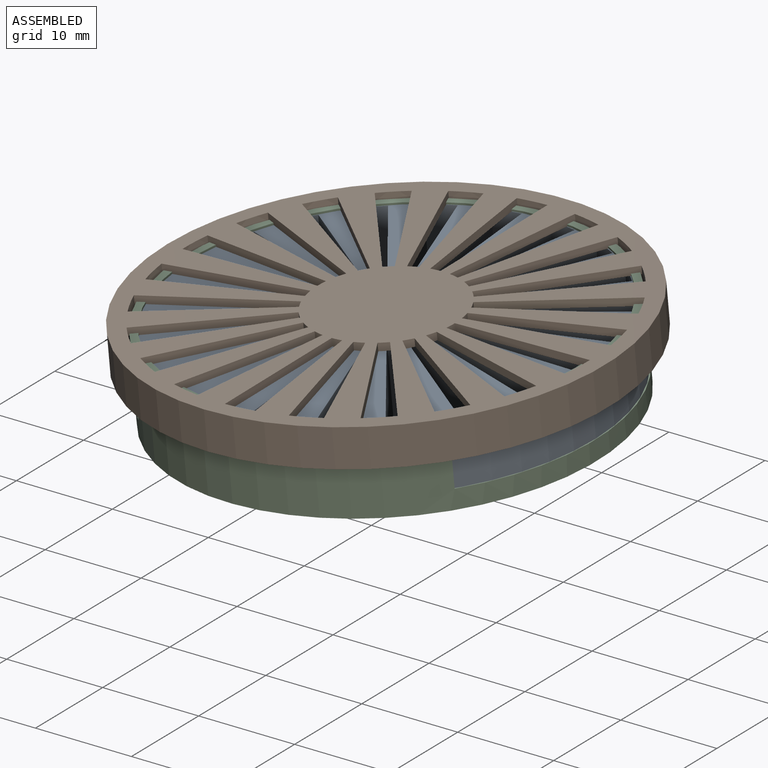
[diagram: assembled view]
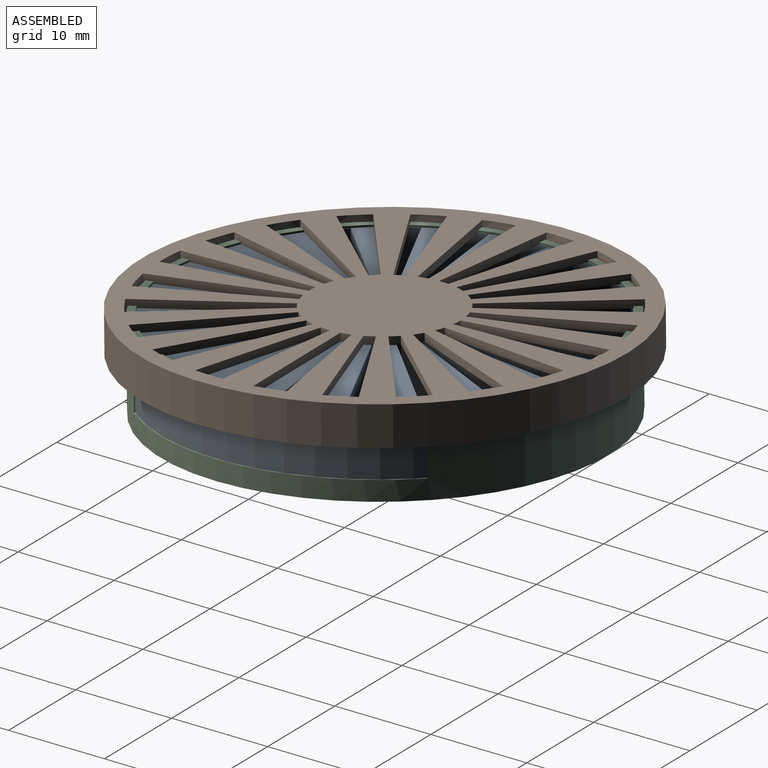
[diagram: assembled view, second angle]
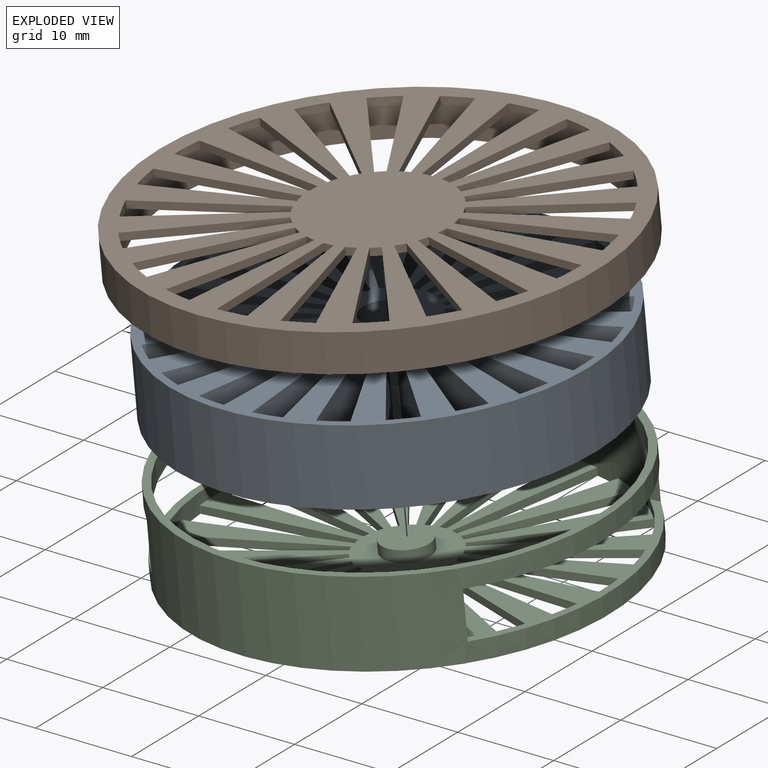
[diagram: exploded view]
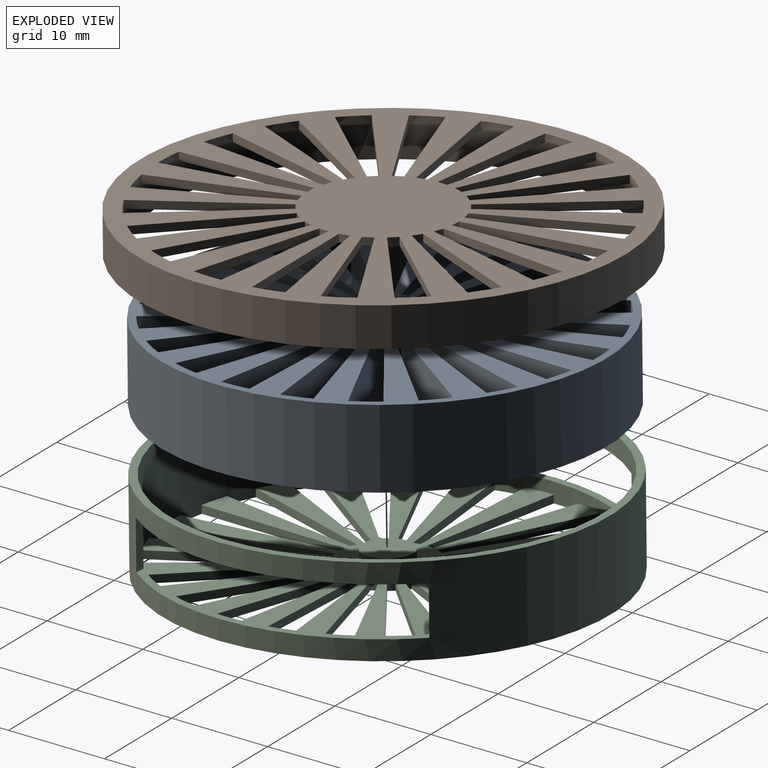
[diagram: exploded view, second angle]
ASSEMBLY  parts=3 mates=4
PART A: 92 faces, bbox 44x44x8 mm
  f0: cylinder r=21.2mm len=8mm, axis (0,0,-1), area 24.2mm2, adj f1,f88,f89,f90
  f1: plane 15.54x8mm, normal (0.28,0.96,0), area 129.6mm2, adj f0,f2,f89,f90
  f2: cylinder r=5mm len=8mm, axis (0,0,-1), area 5.7mm2, adj f1,f88,f89,f90
  f3: cylinder r=21.2mm len=8mm, axis (0,0,-1), area 24.2mm2, adj f4,f66,f89,f90
  f4: plane 13.63x8.76mm, normal (0.54,0.84,0), area 129.6mm2, adj f3,f5,f89,f90
  f5: cylinder r=5mm len=8mm, axis (0,0,-1), area 5.7mm2, adj f4,f66,f89,f90
  f6: cylinder r=21.2mm len=8mm, axis (0,0,-1), area 24.2mm2, adj f7,f67,f89,f90
  f7: plane 12.24x10.61mm, normal (0.76,0.65,0), area 129.6mm2, adj f6,f8,f89,f90
  f8: cylinder r=5mm len=8mm, axis (0,0,-1), area 5.7mm2, adj f7,f67,f89,f90
  f9: cylinder r=21.2mm len=8mm, axis (0,0,-1), area 24.2mm2, adj f10,f68,f89,f90
  f10: plane 14.74x8mm, normal (0.91,0.42,0), area 129.6mm2, adj f9,f11,f89,f90
  f11: cylinder r=5mm len=8mm, axis (0,0,-1), area 5.7mm2, adj f10,f68,f89,f90
  f12: cylinder r=21.2mm len=8mm, axis (0,0,-1), area 24.2mm2, adj f13,f69,f89,f90
  f13: plane 16.04x8mm, normal (0.99,0.14,0), area 129.6mm2, adj f12,f14,f89,f90
  f14: cylinder r=5mm len=8mm, axis (0,0,-1), area 5.7mm2, adj f13,f69,f89,f90
  f15: cylinder r=21.2mm len=8mm, axis (0,0,-1), area 24.2mm2, adj f16,f70,f89,f90
  f16: plane 16.04x8mm, normal (0.99,-0.14,0), area 129.6mm2, adj f15,f17,f89,f90
  f17: cylinder r=5mm len=8mm, axis (0,0,-1), area 5.7mm2, adj f16,f70,f89,f90
  f18: cylinder r=21.2mm len=8mm, axis (0,0,-1), area 24.2mm2, adj f19,f71,f89,f90
  f19: plane 14.74x8mm, normal (0.91,-0.42,0), area 129.6mm2, adj f18,f20,f89,f90
  f20: cylinder r=5mm len=8mm, axis (0,0,-1), area 5.7mm2, adj f19,f71,f89,f90
  f21: cylinder r=21.2mm len=8mm, axis (0,0,-1), area 24.2mm2, adj f22,f72,f89,f90
  f22: plane 12.24x10.61mm, normal (0.76,-0.65,0), area 129.6mm2, adj f21,f23,f89,f90
  f23: cylinder r=5mm len=8mm, axis (0,0,-1), area 5.7mm2, adj f22,f72,f89,f90
  f24: cylinder r=21.2mm len=8mm, axis (0,0,-1), area 24.2mm2, adj f25,f73,f89,f90
  f25: plane 13.63x8.76mm, normal (0.54,-0.84,0), area 129.6mm2, adj f24,f26,f89,f90
  f26: cylinder r=5mm len=8mm, axis (0,0,-1), area 5.7mm2, adj f25,f73,f89,f90
  f27: cylinder r=21.2mm len=8mm, axis (0,0,-1), area 24.2mm2, adj f28,f74,f89,f90
  f28: plane 15.54x8mm, normal (0.28,-0.96,0), area 129.6mm2, adj f27,f29,f89,f90
  f29: cylinder r=5mm len=8mm, axis (0,0,-1), area 5.7mm2, adj f28,f74,f89,f90
  f30: cylinder r=21.2mm len=8mm, axis (0,0,-1), area 24.2mm2, adj f31,f75,f89,f90
  f31: plane 16.2x8mm, normal (0,-1,0), area 129.6mm2, adj f30,f32,f89,f90
  f32: cylinder r=5mm len=8mm, axis (0,0,-1), area 5.7mm2, adj f31,f75,f89,f90
  f33: cylinder r=21.2mm len=8mm, axis (0,0,-1), area 24.2mm2, adj f34,f76,f89,f90
  f34: plane 15.54x8mm, normal (-0.28,-0.96,0), area 129.6mm2, adj f33,f35,f89,f90
  f35: cylinder r=5mm len=8mm, axis (0,0,-1), area 5.7mm2, adj f34,f76,f89,f90
  f36: cylinder r=21.2mm len=8mm, axis (0,0,-1), area 24.2mm2, adj f37,f77,f89,f90
  f37: plane 13.63x8.76mm, normal (-0.54,-0.84,0), area 129.6mm2, adj f36,f38,f89,f90
  f38: cylinder r=5mm len=8mm, axis (0,0,-1), area 5.7mm2, adj f37,f77,f89,f90
  f39: cylinder r=21.2mm len=8mm, axis (0,0,-1), area 24.2mm2, adj f40,f78,f89,f90
  f40: plane 12.24x10.61mm, normal (-0.76,-0.65,0), area 129.6mm2, adj f39,f41,f89,f90
  f41: cylinder r=5mm len=8mm, axis (0,0,-1), area 5.7mm2, adj f40,f78,f89,f90
  f42: cylinder r=21.2mm len=8mm, axis (0,0,-1), area 24.2mm2, adj f43,f79,f89,f90
  f43: plane 14.74x8mm, normal (-0.91,-0.42,0), area 129.6mm2, adj f42,f44,f89,f90
  f44: cylinder r=5mm len=8mm, axis (0,0,-1), area 5.7mm2, adj f43,f79,f89,f90
  f45: cylinder r=21.2mm len=8mm, axis (0,0,-1), area 24.2mm2, adj f46,f80,f89,f90
  f46: plane 16.04x8mm, normal (-0.99,-0.14,0), area 129.6mm2, adj f45,f47,f89,f90
  f47: cylinder r=5mm len=8mm, axis (0,0,-1), area 5.7mm2, adj f46,f80,f89,f90
  f48: cylinder r=21.2mm len=8mm, axis (0,0,-1), area 24.2mm2, adj f49,f81,f89,f90
  f49: plane 16.04x8mm, normal (-0.99,0.14,0), area 129.6mm2, adj f48,f50,f89,f90
  f50: cylinder r=5mm len=8mm, axis (0,0,-1), area 5.7mm2, adj f49,f81,f89,f90
  f51: cylinder r=21.2mm len=8mm, axis (0,0,-1), area 24.2mm2, adj f52,f82,f89,f90
  f52: plane 14.74x8mm, normal (-0.91,0.42,0), area 129.6mm2, adj f51,f53,f89,f90
  f53: cylinder r=5mm len=8mm, axis (0,0,-1), area 5.7mm2, adj f52,f82,f89,f90
  f54: cylinder r=21.2mm len=8mm, axis (0,0,-1), area 24.2mm2, adj f55,f83,f89,f90
  f55: plane 12.24x10.61mm, normal (-0.76,0.65,0), area 129.6mm2, adj f54,f56,f89,f90
  f56: cylinder r=5mm len=8mm, axis (0,0,-1), area 5.7mm2, adj f55,f83,f89,f90
  f57: cylinder r=21.2mm len=8mm, axis (0,0,-1), area 24.2mm2, adj f58,f84,f89,f90
  f58: plane 13.63x8.76mm, normal (-0.54,0.84,0), area 129.6mm2, adj f57,f59,f89,f90
  f59: cylinder r=5mm len=8mm, axis (0,0,-1), area 5.7mm2, adj f58,f84,f89,f90
  f60: cylinder r=21.2mm len=8mm, axis (0,0,-1), area 24.2mm2, adj f61,f85,f89,f90
  f61: plane 15.54x8mm, normal (-0.28,0.96,0), area 129.6mm2, adj f60,f62,f89,f90
  f62: cylinder r=5mm len=8mm, axis (0,0,-1), area 5.7mm2, adj f61,f85,f89,f90
  f63: cylinder r=21.2mm len=8mm, axis (0,0,-1), area 24.2mm2, adj f64,f86,f89,f90
  f64: plane 16.2x8mm, normal (0,1,0), area 129.6mm2, adj f63,f65,f89,f90
  f65: cylinder r=5mm len=8mm, axis (0,0,-1), area 5.7mm2, adj f64,f86,f89,f90
  f66: plane 14.74x8mm, normal (-0.42,-0.91,0), area 129.6mm2, adj f3,f5,f89,f90
  f67: plane 12.24x10.61mm, normal (-0.65,-0.76,0), area 129.6mm2, adj f6,f8,f89,f90
  f68: plane 13.63x8.76mm, normal (-0.84,-0.54,0), area 129.6mm2, adj f9,f11,f89,f90
  f69: plane 15.54x8mm, normal (-0.96,-0.28,0), area 129.6mm2, adj f12,f14,f89,f90
  f70: plane 16.2x8mm, normal (-1,0,0), area 129.6mm2, adj f15,f17,f89,f90
  f71: plane 15.54x8mm, normal (-0.96,0.28,0), area 129.6mm2, adj f18,f20,f89,f90
  f72: plane 13.63x8.76mm, normal (-0.84,0.54,0), area 129.6mm2, adj f21,f23,f89,f90
  f73: plane 12.24x10.61mm, normal (-0.65,0.76,0), area 129.6mm2, adj f24,f26,f89,f90
  f74: plane 14.74x8mm, normal (-0.42,0.91,0), area 129.6mm2, adj f27,f29,f89,f90
  f75: plane 16.04x8mm, normal (-0.14,0.99,0), area 129.6mm2, adj f30,f32,f89,f90
  f76: plane 16.04x8mm, normal (0.14,0.99,0), area 129.6mm2, adj f33,f35,f89,f90
  f77: plane 14.74x8mm, normal (0.42,0.91,0), area 129.6mm2, adj f36,f38,f89,f90
  f78: plane 12.24x10.61mm, normal (0.65,0.76,0), area 129.6mm2, adj f39,f41,f89,f90
  f79: plane 13.63x8.76mm, normal (0.84,0.54,0), area 129.6mm2, adj f42,f44,f89,f90
  f80: plane 15.54x8mm, normal (0.96,0.28,0), area 129.6mm2, adj f45,f47,f89,f90
  f81: plane 16.2x8mm, normal (1,0,0), area 129.6mm2, adj f48,f50,f89,f90
  f82: plane 15.54x8mm, normal (0.96,-0.28,0), area 129.6mm2, adj f51,f53,f89,f90
  f83: plane 13.63x8.76mm, normal (0.84,-0.54,0), area 129.6mm2, adj f54,f56,f89,f90
  f84: plane 12.24x10.61mm, normal (0.65,-0.76,0), area 129.6mm2, adj f57,f59,f89,f90
  f85: plane 14.74x8mm, normal (0.42,-0.91,0), area 129.6mm2, adj f60,f62,f89,f90
  f86: plane 16.04x8mm, normal (0.14,-0.99,0), area 129.6mm2, adj f63,f65,f89,f90
  f87: cylinder r=22mm len=44mm, axis (0,0,-1), area 1105.8mm2, adj f89,f90
  f88: plane 16.04x8mm, normal (-0.14,-0.99,0), area 129.6mm2, adj f0,f2,f89,f90
  f89: plane 44x44mm, normal (0,0,1), area 832.6mm2, adj f0,f1,f2,f3,f4,f5,f6,f7
  f90: plane 44x44mm, normal (0,0,-1), area 832.6mm2, adj f0,f1,f2,f3,f4,f5,f6,f7
  f91: cylinder r=2.6mm len=8mm, axis (0,0,1), area 130.7mm2, adj f89,f90
PART B: 73 faces, bbox 48x48x4 mm
  f0: cylinder r=22.25mm len=44.5mm, axis (0,0,-1), area 503.3mm2, adj f1,f3,f5,f7,f9,f11,f13,f15
  f1: plane 14.15x4.16mm, normal (0.28,0.96,0), area 11.8mm2, adj f0,f2,f68,f69
  f2: cylinder r=7.5mm len=1.05mm, axis (0,0,-1), area 0.9mm2, adj f1,f67,f68,f69
  f3: plane 12.41x7.97mm, normal (0.54,0.84,0), area 11.8mm2, adj f0,f4,f68,f69
  f4: cylinder r=7.5mm len=0.94mm, axis (0,0,-1), area 0.9mm2, adj f3,f45,f68,f69
  f5: plane 11.15x9.66mm, normal (0.76,0.65,0), area 11.8mm2, adj f0,f6,f68,f69
  f6: cylinder r=7.5mm len=0.8mm, axis (0,0,-1), area 0.9mm2, adj f5,f46,f68,f69
  f7: plane 13.42x6.13mm, normal (0.91,0.42,0), area 11.8mm2, adj f0,f8,f68,f69
  f8: cylinder r=7.5mm len=0.94mm, axis (0,0,-1), area 0.9mm2, adj f7,f47,f68,f69
  f9: plane 14.6x2.1mm, normal (0.99,0.14,0), area 11.8mm2, adj f0,f10,f68,f69
  f10: cylinder r=7.5mm len=1.05mm, axis (0,0,-1), area 0.9mm2, adj f9,f48,f68,f69
  f11: plane 14.6x2.1mm, normal (0.99,-0.14,0), area 11.8mm2, adj f0,f12,f68,f69
  f12: cylinder r=7.5mm len=1.07mm, axis (0,0,-1), area 0.9mm2, adj f11,f49,f68,f69
  f13: plane 13.42x6.13mm, normal (0.91,-0.42,0), area 11.8mm2, adj f0,f14,f68,f69
  f14: cylinder r=7.5mm len=1mm, axis (0,0,-1), area 0.9mm2, adj f13,f50,f68,f69
  f15: plane 11.15x9.66mm, normal (0.76,-0.65,0), area 11.8mm2, adj f0,f16,f68,f69
  f16: cylinder r=7.5mm len=0.86mm, axis (0,0,-1), area 0.9mm2, adj f15,f51,f68,f69
  f17: plane 12.41x7.97mm, normal (0.54,-0.84,0), area 11.8mm2, adj f0,f18,f68,f69
  f18: cylinder r=7.5mm len=0.86mm, axis (0,0,-1), area 0.9mm2, adj f17,f52,f68,f69
  f19: plane 14.15x4.16mm, normal (0.28,-0.96,0), area 11.8mm2, adj f0,f20,f68,f69
  f20: cylinder r=7.5mm len=1mm, axis (0,0,-1), area 0.9mm2, adj f19,f53,f68,f69
  f21: plane 14.75x0.8mm, normal (0,-1,0), area 11.8mm2, adj f0,f22,f68,f69
  f22: cylinder r=7.5mm len=1.07mm, axis (0,0,-1), area 0.9mm2, adj f21,f54,f68,f69
  f23: plane 14.15x4.16mm, normal (-0.28,-0.96,0), area 11.8mm2, adj f0,f24,f68,f69
  f24: cylinder r=7.5mm len=1.05mm, axis (0,0,-1), area 0.9mm2, adj f23,f55,f68,f69
  f25: plane 12.41x7.97mm, normal (-0.54,-0.84,0), area 11.8mm2, adj f0,f26,f68,f69
  f26: cylinder r=7.5mm len=0.94mm, axis (0,0,-1), area 0.9mm2, adj f25,f56,f68,f69
  f27: plane 11.15x9.66mm, normal (-0.76,-0.65,0), area 11.8mm2, adj f0,f28,f68,f69
  f28: cylinder r=7.5mm len=0.8mm, axis (0,0,-1), area 0.9mm2, adj f27,f57,f68,f69
  f29: plane 13.42x6.13mm, normal (-0.91,-0.42,0), area 11.8mm2, adj f0,f30,f68,f69
  f30: cylinder r=7.5mm len=0.94mm, axis (0,0,-1), area 0.9mm2, adj f29,f58,f68,f69
  f31: plane 14.6x2.1mm, normal (-0.99,-0.14,0), area 11.8mm2, adj f0,f32,f68,f69
  f32: cylinder r=7.5mm len=1.05mm, axis (0,0,-1), area 0.9mm2, adj f31,f59,f68,f69
  f33: plane 14.6x2.1mm, normal (-0.99,0.14,0), area 11.8mm2, adj f0,f34,f68,f69
  f34: cylinder r=7.5mm len=1.07mm, axis (0,0,-1), area 0.9mm2, adj f33,f60,f68,f69
  f35: plane 13.42x6.13mm, normal (-0.91,0.42,0), area 11.8mm2, adj f0,f36,f68,f69
  f36: cylinder r=7.5mm len=1mm, axis (0,0,-1), area 0.9mm2, adj f35,f61,f68,f69
  f37: plane 11.15x9.66mm, normal (-0.76,0.65,0), area 11.8mm2, adj f0,f38,f68,f69
  f38: cylinder r=7.5mm len=0.86mm, axis (0,0,-1), area 0.9mm2, adj f37,f62,f68,f69
  f39: plane 12.41x7.97mm, normal (-0.54,0.84,0), area 11.8mm2, adj f0,f40,f68,f69
  f40: cylinder r=7.5mm len=0.86mm, axis (0,0,-1), area 0.9mm2, adj f39,f63,f68,f69
  f41: plane 14.15x4.16mm, normal (-0.28,0.96,0), area 11.8mm2, adj f0,f42,f68,f69
  f42: cylinder r=7.5mm len=1mm, axis (0,0,-1), area 0.9mm2, adj f41,f64,f68,f69
  f43: plane 14.75x0.8mm, normal (0,1,0), area 11.8mm2, adj f0,f44,f68,f69
  f44: cylinder r=7.5mm len=1.07mm, axis (0,0,-1), area 0.9mm2, adj f43,f65,f68,f69
  f45: plane 13.42x6.13mm, normal (-0.42,-0.91,0), area 11.8mm2, adj f0,f4,f68,f69
  f46: plane 11.15x9.66mm, normal (-0.65,-0.76,0), area 11.8mm2, adj f0,f6,f68,f69
  f47: plane 12.41x7.97mm, normal (-0.84,-0.54,0), area 11.8mm2, adj f0,f8,f68,f69
  f48: plane 14.15x4.16mm, normal (-0.96,-0.28,0), area 11.8mm2, adj f0,f10,f68,f69
  f49: plane 14.75x0.8mm, normal (-1,0,0), area 11.8mm2, adj f0,f12,f68,f69
  f50: plane 14.15x4.16mm, normal (-0.96,0.28,0), area 11.8mm2, adj f0,f14,f68,f69
  f51: plane 12.41x7.97mm, normal (-0.84,0.54,0), area 11.8mm2, adj f0,f16,f68,f69
  f52: plane 11.15x9.66mm, normal (-0.65,0.76,0), area 11.8mm2, adj f0,f18,f68,f69
  f53: plane 13.42x6.13mm, normal (-0.42,0.91,0), area 11.8mm2, adj f0,f20,f68,f69
  f54: plane 14.6x2.1mm, normal (-0.14,0.99,0), area 11.8mm2, adj f0,f22,f68,f69
  f55: plane 14.6x2.1mm, normal (0.14,0.99,0), area 11.8mm2, adj f0,f24,f68,f69
  f56: plane 13.42x6.13mm, normal (0.42,0.91,0), area 11.8mm2, adj f0,f26,f68,f69
  f57: plane 11.15x9.66mm, normal (0.65,0.76,0), area 11.8mm2, adj f0,f28,f68,f69
  f58: plane 12.41x7.97mm, normal (0.84,0.54,0), area 11.8mm2, adj f0,f30,f68,f69
  f59: plane 14.15x4.16mm, normal (0.96,0.28,0), area 11.8mm2, adj f0,f32,f68,f69
  f60: plane 14.75x0.8mm, normal (1,0,0), area 11.8mm2, adj f0,f34,f68,f69
  f61: plane 14.15x4.16mm, normal (0.96,-0.28,0), area 11.8mm2, adj f0,f36,f68,f69
  f62: plane 12.41x7.97mm, normal (0.84,-0.54,0), area 11.8mm2, adj f0,f38,f68,f69
  f63: plane 11.15x9.66mm, normal (0.65,-0.76,0), area 11.8mm2, adj f0,f40,f68,f69
  f64: plane 13.42x6.13mm, normal (0.42,-0.91,0), area 11.8mm2, adj f0,f42,f68,f69
  f65: plane 14.6x2.1mm, normal (0.14,-0.99,0), area 11.8mm2, adj f0,f44,f68,f69
  f66: cylinder r=24mm len=48mm, axis (0,0,-1), area 603.2mm2, adj f69,f70
  f67: plane 14.6x2.1mm, normal (-0.14,-0.99,0), area 11.8mm2, adj f0,f2,f68,f69
  f68: plane 44.5x44.5mm, normal (0,0,1), area 846.4mm2, adj f0,f1,f2,f3,f4,f5,f6,f7
  f69: plane 48x48mm, normal (0,0,-1), area 1120.3mm2, adj f0,f1,f2,f3,f4,f5,f6,f7
  f70: plane 48x48mm, normal (0,0,1), area 254.3mm2, adj f0,f66
  f71: cylinder r=2.5mm len=5mm, axis (0,0,-1), area 31.4mm2, adj f68,f72
  f72: plane 5x5mm, normal (0,0,1), area 19.6mm2, adj f71
PART C: 81 faces, bbox 44.2x44.2x9 mm
  f0: cylinder r=2.5mm len=5mm, axis (0,0,-1), area 18.8mm2, adj f69,f72
  f1: cylinder r=21.3mm len=42.6mm, axis (0,0,-1), area 818.1mm2, adj f2,f4,f6,f8,f10,f12,f14,f16
  f2: plane 15.64x4.59mm, normal (0.28,0.96,0), area 13mm2, adj f1,f3,f69,f70
  f3: cylinder r=5mm len=0.8mm, axis (0,0,-1), area 0.6mm2, adj f2,f68,f69,f70
  f4: plane 13.71x8.81mm, normal (0.54,0.84,0), area 13mm2, adj f1,f5,f69,f70
  f5: cylinder r=5mm len=0.8mm, axis (0,0,-1), area 0.6mm2, adj f4,f46,f69,f70
  f6: plane 12.32x10.67mm, normal (0.76,0.65,0), area 13mm2, adj f1,f7,f69,f70
  f7: cylinder r=5mm len=0.8mm, axis (0,0,-1), area 0.6mm2, adj f6,f47,f69,f70
  f8: plane 14.83x6.77mm, normal (0.91,0.42,0), area 13mm2, adj f1,f9,f69,f70
  f9: cylinder r=5mm len=0.8mm, axis (0,0,-1), area 0.6mm2, adj f8,f48,f69,f70
  f10: plane 16.13x2.32mm, normal (0.99,0.14,0), area 13mm2, adj f1,f11,f69,f70
  f11: cylinder r=5mm len=0.8mm, axis (0,0,-1), area 0.6mm2, adj f10,f49,f69,f70
  f12: plane 16.13x2.32mm, normal (0.99,-0.14,0), area 13mm2, adj f1,f13,f69,f70
  f13: cylinder r=5mm len=0.8mm, axis (0,0,-1), area 0.6mm2, adj f12,f50,f69,f70
  f14: plane 14.83x6.77mm, normal (0.91,-0.42,0), area 13mm2, adj f1,f15,f69,f70
  f15: cylinder r=5mm len=0.8mm, axis (0,0,-1), area 0.6mm2, adj f14,f51,f69,f70
  f16: plane 12.32x10.67mm, normal (0.76,-0.65,0), area 13mm2, adj f1,f17,f69,f70
  f17: cylinder r=5mm len=0.8mm, axis (0,0,-1), area 0.6mm2, adj f16,f52,f69,f70
  f18: plane 13.71x8.81mm, normal (0.54,-0.84,0), area 13mm2, adj f1,f19,f69,f70
  f19: cylinder r=5mm len=0.8mm, axis (0,0,-1), area 0.6mm2, adj f18,f53,f69,f70
  f20: plane 15.64x4.59mm, normal (0.28,-0.96,0), area 13mm2, adj f1,f21,f69,f70
  f21: cylinder r=5mm len=0.8mm, axis (0,0,-1), area 0.6mm2, adj f20,f54,f69,f70
  f22: plane 16.3x0.8mm, normal (0,-1,0), area 13mm2, adj f1,f23,f69,f70
  f23: cylinder r=5mm len=0.8mm, axis (0,0,-1), area 0.6mm2, adj f22,f55,f69,f70
  f24: plane 15.64x4.59mm, normal (-0.28,-0.96,0), area 13mm2, adj f1,f25,f69,f70
  f25: cylinder r=5mm len=0.8mm, axis (0,0,-1), area 0.6mm2, adj f24,f56,f69,f70
  f26: plane 13.71x8.81mm, normal (-0.54,-0.84,0), area 13mm2, adj f1,f27,f69,f70
  f27: cylinder r=5mm len=0.8mm, axis (0,0,-1), area 0.6mm2, adj f26,f57,f69,f70
  f28: plane 12.32x10.67mm, normal (-0.76,-0.65,0), area 13mm2, adj f1,f29,f69,f70
  f29: cylinder r=5mm len=0.8mm, axis (0,0,-1), area 0.6mm2, adj f28,f58,f69,f70
  f30: plane 14.83x6.77mm, normal (-0.91,-0.42,0), area 13mm2, adj f1,f31,f69,f70
  f31: cylinder r=5mm len=0.8mm, axis (0,0,-1), area 0.6mm2, adj f30,f59,f69,f70
  f32: plane 16.13x2.32mm, normal (-0.99,-0.14,0), area 13mm2, adj f1,f33,f69,f70
  f33: cylinder r=5mm len=0.8mm, axis (0,0,-1), area 0.6mm2, adj f32,f60,f69,f70
  f34: plane 16.13x2.32mm, normal (-0.99,0.14,0), area 13mm2, adj f1,f35,f69,f70
  f35: cylinder r=5mm len=0.8mm, axis (0,0,-1), area 0.6mm2, adj f34,f61,f69,f70
  f36: plane 14.83x6.77mm, normal (-0.91,0.42,0), area 13mm2, adj f1,f37,f69,f70
  f37: cylinder r=5mm len=0.8mm, axis (0,0,-1), area 0.6mm2, adj f36,f62,f69,f70
  f38: plane 12.32x10.67mm, normal (-0.76,0.65,0), area 13mm2, adj f1,f39,f69,f70
  f39: cylinder r=5mm len=0.8mm, axis (0,0,-1), area 0.6mm2, adj f38,f63,f69,f70
  f40: plane 13.71x8.81mm, normal (-0.54,0.84,0), area 13mm2, adj f1,f41,f69,f70
  f41: cylinder r=5mm len=0.8mm, axis (0,0,-1), area 0.6mm2, adj f40,f64,f69,f70
  f42: plane 15.64x4.59mm, normal (-0.28,0.96,0), area 13mm2, adj f1,f43,f69,f70
  f43: cylinder r=5mm len=0.8mm, axis (0,0,-1), area 0.6mm2, adj f42,f65,f69,f70
  f44: plane 16.3x0.8mm, normal (0,1,0), area 13mm2, adj f1,f45,f69,f70
  f45: cylinder r=5mm len=0.8mm, axis (0,0,-1), area 0.6mm2, adj f44,f66,f69,f70
  f46: plane 14.83x6.77mm, normal (-0.42,-0.91,0), area 13mm2, adj f1,f5,f69,f70
  f47: plane 12.32x10.67mm, normal (-0.65,-0.76,0), area 13mm2, adj f1,f7,f69,f70
  f48: plane 13.71x8.81mm, normal (-0.84,-0.54,0), area 13mm2, adj f1,f9,f69,f70
  f49: plane 15.64x4.59mm, normal (-0.96,-0.28,0), area 13mm2, adj f1,f11,f69,f70
  f50: plane 16.3x0.8mm, normal (-1,0,0), area 13mm2, adj f1,f13,f69,f70
  f51: plane 15.64x4.59mm, normal (-0.96,0.28,0), area 13mm2, adj f1,f15,f69,f70
  f52: plane 13.71x8.81mm, normal (-0.84,0.54,0), area 13mm2, adj f1,f17,f69,f70
  f53: plane 12.32x10.67mm, normal (-0.65,0.76,0), area 13mm2, adj f1,f19,f69,f70
  f54: plane 14.83x6.77mm, normal (-0.42,0.91,0), area 13mm2, adj f1,f21,f69,f70
  f55: plane 16.13x2.32mm, normal (-0.14,0.99,0), area 13mm2, adj f1,f23,f69,f70
  f56: plane 16.13x2.32mm, normal (0.14,0.99,0), area 13mm2, adj f1,f25,f69,f70
  f57: plane 14.83x6.77mm, normal (0.42,0.91,0), area 13mm2, adj f1,f27,f69,f70
  f58: plane 12.32x10.67mm, normal (0.65,0.76,0), area 13mm2, adj f1,f29,f69,f70
  f59: plane 13.71x8.81mm, normal (0.84,0.54,0), area 13mm2, adj f1,f31,f69,f70
  f60: plane 15.64x4.59mm, normal (0.96,0.28,0), area 13mm2, adj f1,f33,f69,f70
  f61: plane 16.3x0.8mm, normal (1,0,0), area 13mm2, adj f1,f35,f69,f70
  f62: plane 15.64x4.59mm, normal (0.96,-0.28,0), area 13mm2, adj f1,f37,f69,f70
  f63: plane 13.71x8.81mm, normal (0.84,-0.54,0), area 13mm2, adj f1,f39,f69,f70
  f64: plane 12.32x10.67mm, normal (0.65,-0.76,0), area 13mm2, adj f1,f41,f69,f70
  f65: plane 14.83x6.77mm, normal (0.42,-0.91,0), area 13mm2, adj f1,f43,f69,f70
  f66: plane 16.13x2.32mm, normal (0.14,-0.99,0), area 13mm2, adj f1,f45,f69,f70
  f67: cylinder r=22.1mm len=44.2mm, axis (0,0,-1), area 920mm2, adj f70,f71,f73,f74,f75,f76,f77,f78
  f68: plane 16.13x2.32mm, normal (-0.14,-0.99,0), area 13mm2, adj f1,f3,f69,f70
  f69: plane 42.6x42.6mm, normal (0,0,1), area 732.3mm2, adj f0,f1,f2,f3,f4,f5,f6,f7
  f70: plane 44.2x44.2mm, normal (0,0,-1), area 861mm2, adj f1,f2,f3,f4,f5,f6,f7,f8
  f71: plane 44.2x44.2mm, normal (0,0,1), area 109.1mm2, adj f1,f67
  f72: plane 5x5mm, normal (0,0,1), area 19.6mm2, adj f0
  f73: plane 5x1.11mm, normal (0,-1,0), area 5.5mm2, adj f1,f67,f74,f76
  f74: plane 30x6.98mm, normal (0,0,1), area 26.5mm2, adj f1,f67,f73,f75
  f75: plane 5x1.11mm, normal (0,1,0), area 5.5mm2, adj f1,f67,f74,f76
  f76: plane 30x6.98mm, normal (0,0,-1), area 26.5mm2, adj f1,f67,f73,f75
  f77: plane 30x6.98mm, normal (0,0,-1), area 26.5mm2, adj f1,f67,f78,f79
  f78: plane 5x1.11mm, normal (0,1,0), area 5.5mm2, adj f1,f67,f77,f80
  f79: plane 5x1.11mm, normal (0,-1,0), area 5.5mm2, adj f1,f67,f77,f80
  f80: plane 30x6.98mm, normal (0,0,1), area 26.5mm2, adj f1,f67,f78,f79
PLACE A rot(axis=(0.08,-0.15,0.99),26.9deg) t=(-31.03,-59.43,-15.15)mm
PLACE B rot(axis=(-0.97,-0.25,-0.03),177.9deg) t=(-31.54,-59.89,-6.38)mm
PLACE C rot(axis=(0.63,-0.71,0.32),4.7deg) t=(-30.99,-59.38,-15.95)mm
MATE planar B.f68 <-> A.f89  axis (0.06,0.05,-1) through (-38.55,-57.3,-7.45)mm
MATE cylindrical A.f91 <-> B.f2  axis (-0.06,-0.05,1) through (-31.49,-59.85,-7.18)mm
MATE planar A.f90 <-> C.f69  axis (-0.06,-0.05,1) through (-51.54,-54.14,-16.06)mm
MATE cylindrical A.f87 <-> C.f67  axis (-0.06,-0.05,1) through (-31.49,-59.85,-7.18)mm
